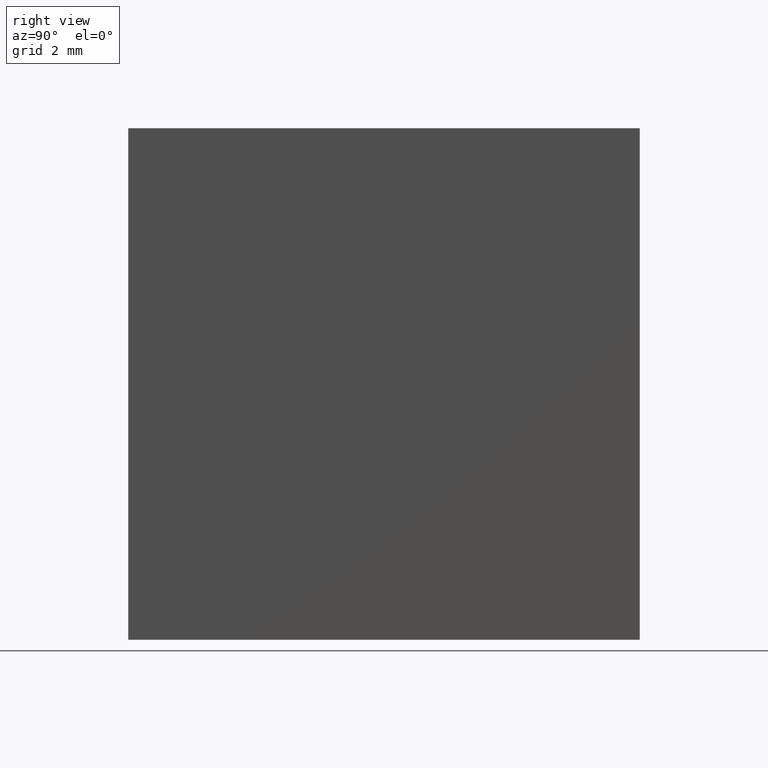
[diagram: clean part render]
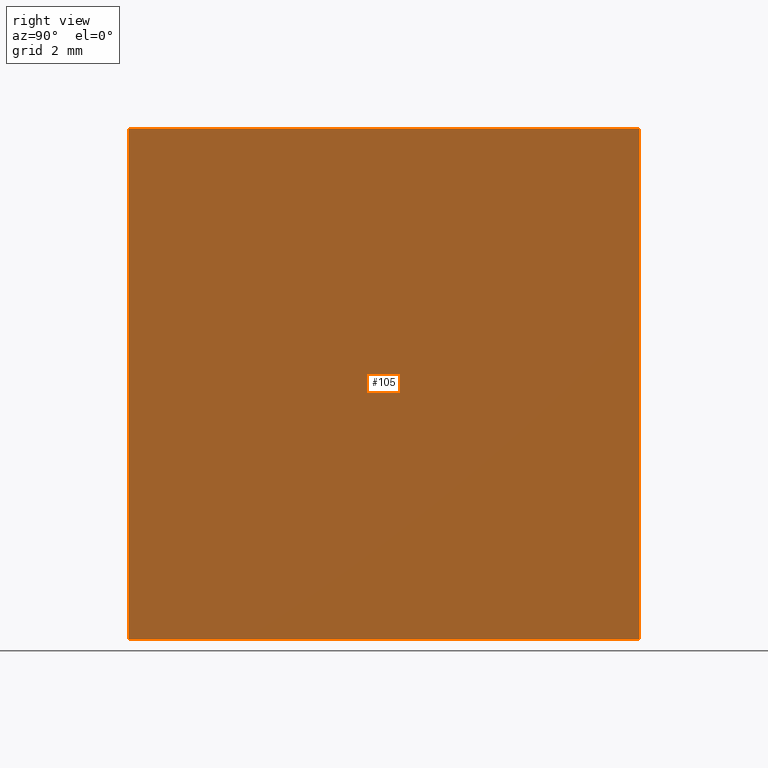
[diagram: same view with one face highlighted and labeled with its STEP entity id]
A machine part, right view. The second image highlights one B-rep face of the part: STEP entity #105.
In plain terms, the highlighted planar face has unit normal (-1, 0, 0).
Its self-contained STEP definition (entity closure, byte-faithful):
#10 = DIRECTION ( 'NONE',  ( -0.000000000000000000, -0.000000000000000000, -1.000000000000000000 ) ) ;
#11 = ORIENTED_EDGE ( 'NONE', *, *, #130, .F. ) ;
#27 = CARTESIAN_POINT ( 'NONE',  ( 59.84424807826814430, 18.35260716345252519, 10.00000000000000000 ) ) ;
#30 = EDGE_LOOP ( 'NONE', ( #163, #11, #113, #142 ) ) ;
#38 = DIRECTION ( 'NONE',  ( -0.000000000000000000, 1.000000000000000000, -0.000000000000000000 ) ) ;
#56 = CARTESIAN_POINT ( 'NONE',  ( 59.84424807826814430, 18.35260716345252519, 10.00000000000000000 ) ) ;
#64 = DIRECTION ( 'NONE',  ( -0.000000000000000000, -0.000000000000000000, -1.000000000000000000 ) ) ;
#76 = LINE ( 'NONE', #56, #201 ) ;
#78 = EDGE_CURVE ( 'NONE', #99, #80, #146, .T. ) ;
#80 = VERTEX_POINT ( 'NONE', #221 ) ;
#85 = CARTESIAN_POINT ( 'NONE',  ( 59.84424807826814430, 8.352607163452523409, 10.00000000000000000 ) ) ;
#92 = CARTESIAN_POINT ( 'NONE',  ( 59.84424807826814430, 18.35260716345252519, 0.000000000000000000 ) ) ;
#97 = CARTESIAN_POINT ( 'NONE',  ( 59.84424807826814430, 8.352607163452523409, 0.000000000000000000 ) ) ;
#99 = VERTEX_POINT ( 'NONE', #97 ) ;
#105 = ADVANCED_FACE ( 'NONE', ( #133 ), #209, .F. ) ;
#112 = CARTESIAN_POINT ( 'NONE',  ( 59.84424807826814430, 18.35260716345252519, 10.00000000000000000 ) ) ;
#113 = ORIENTED_EDGE ( 'NONE', *, *, #187, .F. ) ;
#126 = VECTOR ( 'NONE', #64, 1000.000000000000000 ) ;
#130 = EDGE_CURVE ( 'NONE', #212, #80, #231, .T. ) ;
#133 = FACE_OUTER_BOUND ( 'NONE', #30, .T. ) ;
#134 = CARTESIAN_POINT ( 'NONE',  ( 59.84424807826814430, 8.352607163452523409, 10.00000000000000000 ) ) ;
#142 = ORIENTED_EDGE ( 'NONE', *, *, #151, .T. ) ;
#146 = LINE ( 'NONE', #92, #164 ) ;
#151 = EDGE_CURVE ( 'NONE', #184, #99, #215, .T. ) ;
#156 = DIRECTION ( 'NONE',  ( -1.000000000000000000, 0.000000000000000000, 0.000000000000000000 ) ) ;
#163 = ORIENTED_EDGE ( 'NONE', *, *, #78, .T. ) ;
#164 = VECTOR ( 'NONE', #239, 1000.000000000000000 ) ;
#174 = CARTESIAN_POINT ( 'NONE',  ( 59.84424807826814430, 18.35260716345252519, 10.00000000000000000 ) ) ;
#178 = DIRECTION ( 'NONE',  ( 0.000000000000000000, 0.000000000000000000, 1.000000000000000000 ) ) ;
#184 = VERTEX_POINT ( 'NONE', #134 ) ;
#187 = EDGE_CURVE ( 'NONE', #184, #212, #76, .T. ) ;
#195 = AXIS2_PLACEMENT_3D ( 'NONE', #112, #156, #178 ) ;
#201 = VECTOR ( 'NONE', #38, 1000.000000000000000 ) ;
#205 = VECTOR ( 'NONE', #10, 1000.000000000000000 ) ;
#209 = PLANE ( 'NONE',  #195 ) ;
#212 = VERTEX_POINT ( 'NONE', #174 ) ;
#215 = LINE ( 'NONE', #85, #126 ) ;
#221 = CARTESIAN_POINT ( 'NONE',  ( 59.84424807826814430, 18.35260716345252519, 0.000000000000000000 ) ) ;
#231 = LINE ( 'NONE', #27, #205 ) ;
#239 = DIRECTION ( 'NONE',  ( -0.000000000000000000, 1.000000000000000000, -0.000000000000000000 ) ) ;